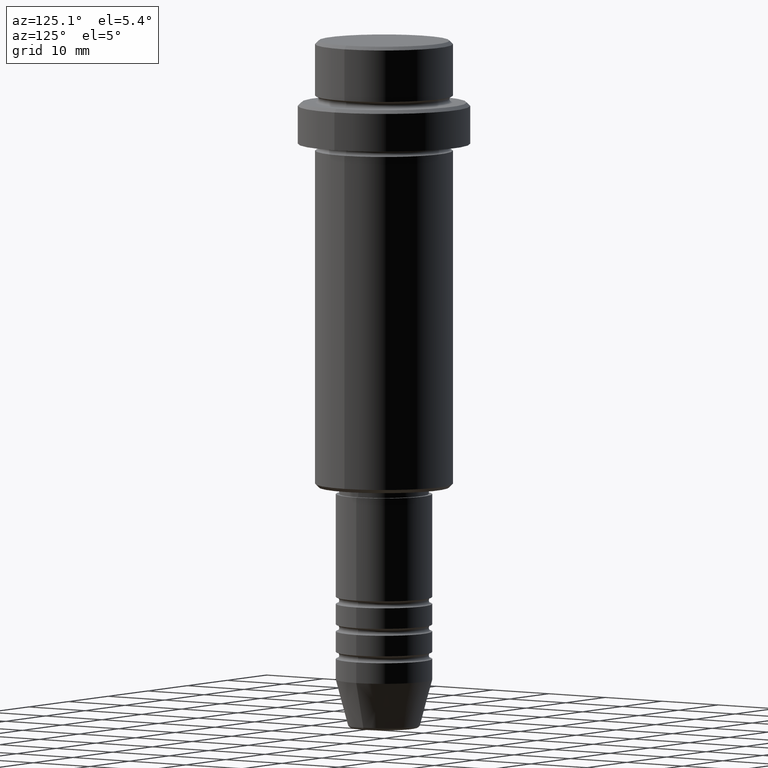
[diagram: clean part render]
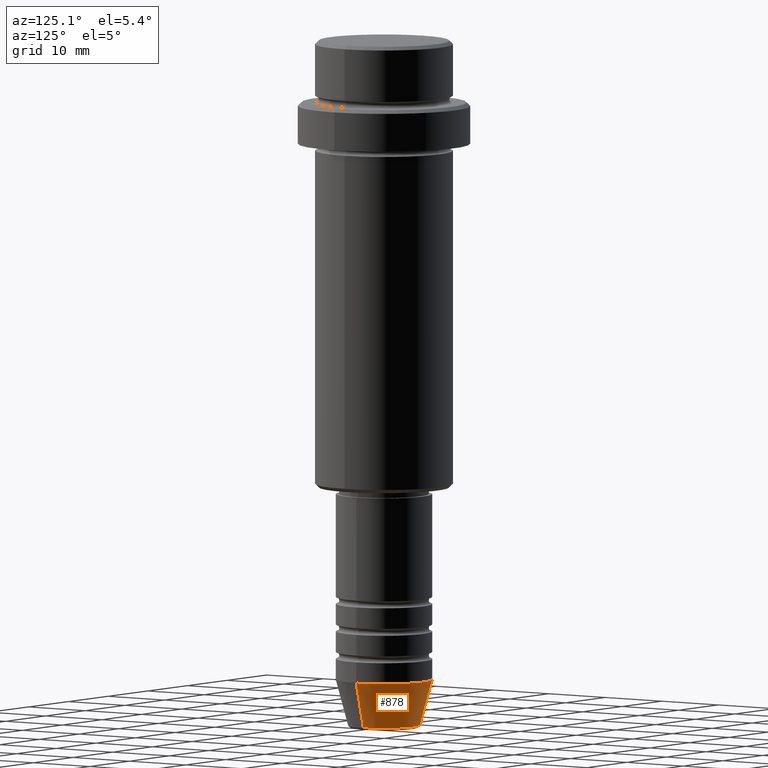
[diagram: same view with one face highlighted and labeled with its STEP entity id]
A machine part, auxiliary view. The second image highlights one B-rep face of the part: STEP entity #878.
In plain terms, the highlighted conical surface has half-angle 15 deg.
Its self-contained STEP definition (entity closure, byte-faithful):
#2 = DIRECTION ( 'NONE',  ( 1.000000000000000000, 0.000000000000000000, 0.000000000000000000 ) ) ;
#22 = EDGE_LOOP ( 'NONE', ( #441, #1302, #260, #647 ) ) ;
#100 = EDGE_CURVE ( 'NONE', #301, #575, #568, .T. ) ;
#119 = DIRECTION ( 'NONE',  ( -0.000000000000000000, -0.000000000000000000, 1.000000000000000000 ) ) ;
#143 = AXIS2_PLACEMENT_3D ( 'NONE', #486, #844, #1280 ) ;
#197 = DIRECTION ( 'NONE',  ( -0.000000000000000000, -0.000000000000000000, 1.000000000000000000 ) ) ;
#260 = ORIENTED_EDGE ( 'NONE', *, *, #947, .F. ) ;
#271 = LINE ( 'NONE', #1374, #815 ) ;
#301 = VERTEX_POINT ( 'NONE', #863 ) ;
#360 = CONICAL_SURFACE ( 'NONE', #143, 7.000000000000000000, 0.2617993877991501295 ) ;
#364 = CIRCLE ( 'NONE', #739, 5.223655072137187716 ) ;
#384 = FACE_OUTER_BOUND ( 'NONE', #22, .T. ) ;
#430 = CARTESIAN_POINT ( 'NONE',  ( 0.000000000000000000, 0.000000000000000000, -99.62940952255127058 ) ) ;
#441 = ORIENTED_EDGE ( 'NONE', *, *, #989, .T. ) ;
#486 = CARTESIAN_POINT ( 'NONE',  ( 0.000000000000000000, 0.000000000000000000, -93.00000000000000000 ) ) ;
#568 = LINE ( 'NONE', #1020, #1169 ) ;
#575 = VERTEX_POINT ( 'NONE', #983 ) ;
#637 = CARTESIAN_POINT ( 'NONE',  ( 0.000000000000000000, 0.000000000000000000, -93.00000000000000000 ) ) ;
#647 = ORIENTED_EDGE ( 'NONE', *, *, #846, .F. ) ;
#739 = AXIS2_PLACEMENT_3D ( 'NONE', #430, #197, #2 ) ;
#815 = VECTOR ( 'NONE', #864, 1000.000000000000000 ) ;
#842 = AXIS2_PLACEMENT_3D ( 'NONE', #637, #119, #893 ) ;
#844 = DIRECTION ( 'NONE',  ( -0.000000000000000000, -0.000000000000000000, 1.000000000000000000 ) ) ;
#846 = EDGE_CURVE ( 'NONE', #1037, #992, #271, .T. ) ;
#863 = CARTESIAN_POINT ( 'NONE',  ( -5.223655072137187716, 7.484830028987059188E-16, -99.62940952255127058 ) ) ;
#864 = DIRECTION ( 'NONE',  ( 0.2588190451025214056, 0.000000000000000000, 0.9659258262890680902 ) ) ;
#868 = CIRCLE ( 'NONE', #842, 7.000000000000000000 ) ;
#878 = ADVANCED_FACE ( 'NONE', ( #384 ), #360, .T. ) ;
#893 = DIRECTION ( 'NONE',  ( 1.000000000000000000, 0.000000000000000000, 0.000000000000000000 ) ) ;
#927 = CARTESIAN_POINT ( 'NONE',  ( 5.223655072137187716, 0.000000000000000000, -99.62940952255127058 ) ) ;
#947 = EDGE_CURVE ( 'NONE', #992, #575, #868, .T. ) ;
#983 = CARTESIAN_POINT ( 'NONE',  ( -7.000000000000000000, 8.572527594031473190E-16, -93.00000000000000000 ) ) ;
#989 = EDGE_CURVE ( 'NONE', #1037, #301, #364, .T. ) ;
#992 = VERTEX_POINT ( 'NONE', #1199 ) ;
#1020 = CARTESIAN_POINT ( 'NONE',  ( -7.000000000000000000, 8.572527594031473190E-16, -93.00000000000000000 ) ) ;
#1037 = VERTEX_POINT ( 'NONE', #927 ) ;
#1136 = DIRECTION ( 'NONE',  ( -0.2588190451025214056, 3.169619151431772953E-17, 0.9659258262890680902 ) ) ;
#1169 = VECTOR ( 'NONE', #1136, 1000.000000000000000 ) ;
#1199 = CARTESIAN_POINT ( 'NONE',  ( 7.000000000000000000, 0.000000000000000000, -93.00000000000000000 ) ) ;
#1280 = DIRECTION ( 'NONE',  ( 1.000000000000000000, 0.000000000000000000, 0.000000000000000000 ) ) ;
#1302 = ORIENTED_EDGE ( 'NONE', *, *, #100, .T. ) ;
#1374 = CARTESIAN_POINT ( 'NONE',  ( 7.000000000000000000, 0.000000000000000000, -93.00000000000000000 ) ) ;